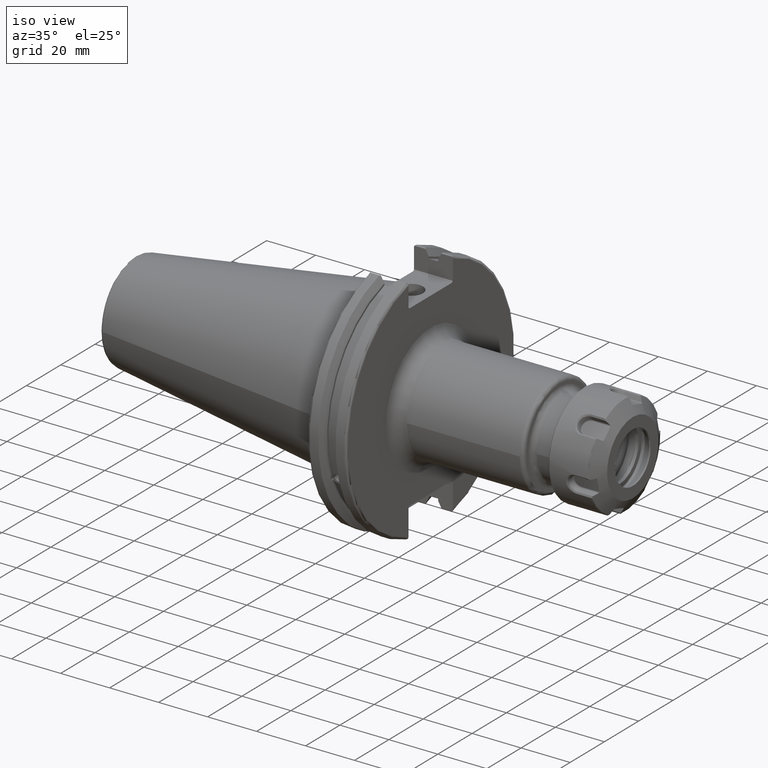
[diagram: clean part render]
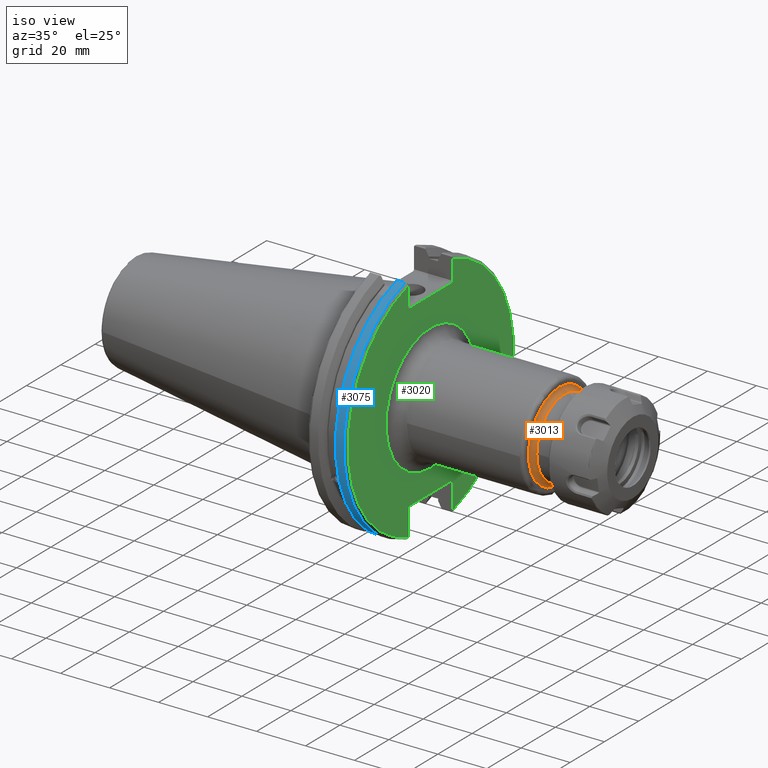
[diagram: same view with three faces highlighted in distinct colors, each labeled with its STEP entity id]
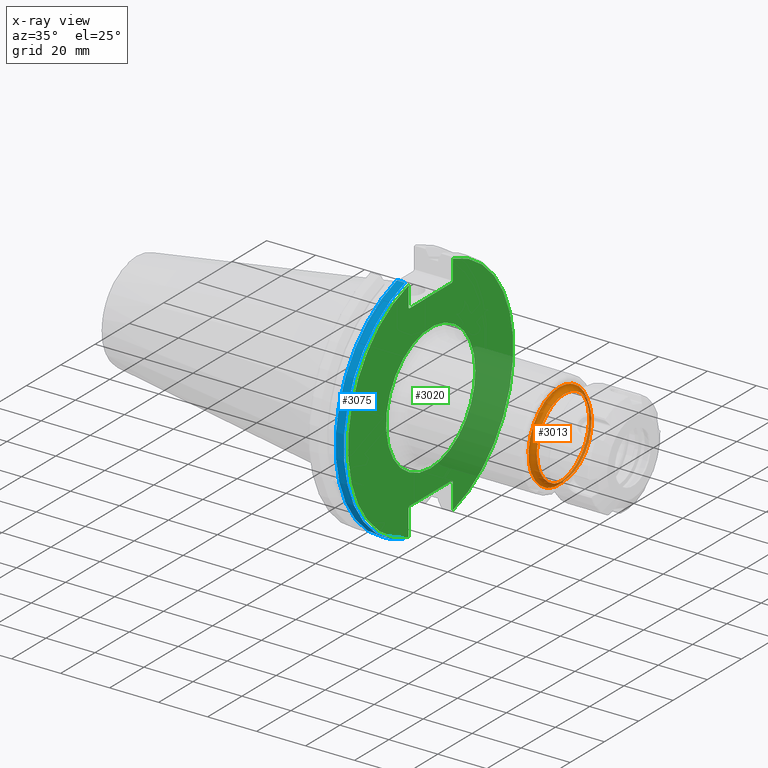
[diagram: x-ray of the same camera — body ghosted, the three highlighted faces saturated]
A machine part, iso view with three faces highlighted in distinct colors.
The next image is the same camera in x-ray (body ghosted, the three faces saturated) — at least one of them is partly hidden behind the body in this view.
Their STEP definitions:

[orange] entity #3013 — the highlighted toroidal blend (fillet) surface has major radius 18 mm and minor (blend) radius 2 mm.
#51=TOROIDAL_SURFACE('',#3258,18.,2.);
#293=FACE_OUTER_BOUND('',#466,.T.);
#466=EDGE_LOOP('',(#2040,#2041,#2042,#2043,#2044,#2045,#2046));
#1033=CIRCLE('',#3252,16.);
#1034=CIRCLE('',#3253,16.);
#1035=CIRCLE('',#3254,16.);
#1038=CIRCLE('',#3259,18.);
#1039=CIRCLE('',#3260,2.);
#1040=CIRCLE('',#3261,18.);
#1220=VERTEX_POINT('',#4626);
#1221=VERTEX_POINT('',#4628);
#1222=VERTEX_POINT('',#4630);
#1225=VERTEX_POINT('',#4639);
#1226=VERTEX_POINT('',#4640);
#1549=EDGE_CURVE('',#1221,#1220,#1033,.T.);
#1550=EDGE_CURVE('',#1222,#1221,#1034,.T.);
#1551=EDGE_CURVE('',#1220,#1222,#1035,.T.);
#1554=EDGE_CURVE('',#1225,#1226,#1038,.T.);
#1555=EDGE_CURVE('',#1226,#1222,#1039,.T.);
#1556=EDGE_CURVE('',#1226,#1225,#1040,.T.);
#2040=ORIENTED_EDGE('',*,*,#1554,.T.);
#2041=ORIENTED_EDGE('',*,*,#1555,.T.);
#2042=ORIENTED_EDGE('',*,*,#1550,.T.);
#2043=ORIENTED_EDGE('',*,*,#1549,.T.);
#2044=ORIENTED_EDGE('',*,*,#1551,.T.);
#2045=ORIENTED_EDGE('',*,*,#1555,.F.);
#2046=ORIENTED_EDGE('',*,*,#1556,.T.);
#3013=ADVANCED_FACE('',(#293),#51,.F.);
#3252=AXIS2_PLACEMENT_3D('',#4629,#3621,#3622);
#3253=AXIS2_PLACEMENT_3D('',#4631,#3623,#3624);
#3254=AXIS2_PLACEMENT_3D('',#4632,#3625,#3626);
#3258=AXIS2_PLACEMENT_3D('',#4638,#3633,#3634);
#3259=AXIS2_PLACEMENT_3D('',#4641,#3635,#3636);
#3260=AXIS2_PLACEMENT_3D('',#4642,#3637,#3638);
#3261=AXIS2_PLACEMENT_3D('',#4643,#3639,#3640);
#3621=DIRECTION('center_axis',(-1.,0.,0.));
#3622=DIRECTION('ref_axis',(0.,-1.,1.83697019872103E-16));
#3623=DIRECTION('center_axis',(-1.,0.,0.));
#3624=DIRECTION('ref_axis',(0.,-1.,1.83697019872103E-16));
#3625=DIRECTION('center_axis',(-1.,0.,0.));
#3626=DIRECTION('ref_axis',(0.,-1.,1.83697019872103E-16));
#3633=DIRECTION('center_axis',(1.,0.,0.));
#3634=DIRECTION('ref_axis',(0.,0.,-1.));
#3635=DIRECTION('center_axis',(1.,0.,0.));
#3636=DIRECTION('ref_axis',(0.,-1.,1.83697019872103E-16));
#3637=DIRECTION('center_axis',(0.,-1.,-1.22464679914735E-16));
#3638=DIRECTION('ref_axis',(0.,-1.22464679914735E-16,1.));
#3639=DIRECTION('center_axis',(1.,0.,0.));
#3640=DIRECTION('ref_axis',(0.,-1.,1.83697019872103E-16));
#4626=CARTESIAN_POINT('',(73.6,-16.,-1.95943487863576E-15));
#4628=CARTESIAN_POINT('',(73.6,16.,-4.89858719658941E-15));
#4629=CARTESIAN_POINT('Origin',(73.6,0.,0.));
#4630=CARTESIAN_POINT('',(73.6,-1.95943487863576E-15,16.));
#4631=CARTESIAN_POINT('Origin',(73.6,0.,0.));
#4632=CARTESIAN_POINT('Origin',(73.6,0.,0.));
#4638=CARTESIAN_POINT('Origin',(73.6,0.,0.));
#4639=CARTESIAN_POINT('',(71.6,18.,-1.10218211923262E-15));
#4640=CARTESIAN_POINT('',(71.6,-2.20436423846523E-15,18.));
#4641=CARTESIAN_POINT('Origin',(71.6,0.,0.));
#4642=CARTESIAN_POINT('Origin',(73.6,-2.20436423846523E-15,18.));
#4643=CARTESIAN_POINT('Origin',(71.6,0.,0.));

[blue] entity #3075 — the highlighted cylindrical surface (partial cylindrical patch) has radius 49.2125 mm, axis along (1, 0, 0).
#355=FACE_OUTER_BOUND('',#543,.T.);
#543=EDGE_LOOP('',(#2435,#2436,#2437,#2438));
#738=LINE('',#5437,#924);
#739=LINE('',#5439,#925);
#924=VECTOR('',#4017,10.);
#925=VECTOR('',#4020,10.);
#1074=CIRCLE('',#3313,49.2125);
#1112=CIRCLE('',#3378,49.2125);
#1281=VERTEX_POINT('',#4877);
#1282=VERTEX_POINT('',#4881);
#1356=VERTEX_POINT('',#5272);
#1357=VERTEX_POINT('',#5281);
#1622=EDGE_CURVE('',#1282,#1281,#1074,.T.);
#1721=EDGE_CURVE('',#1356,#1357,#1112,.T.);
#1771=EDGE_CURVE('',#1357,#1281,#738,.T.);
#1772=EDGE_CURVE('',#1282,#1356,#739,.T.);
#2435=ORIENTED_EDGE('',*,*,#1721,.F.);
#2436=ORIENTED_EDGE('',*,*,#1772,.F.);
#2437=ORIENTED_EDGE('',*,*,#1622,.T.);
#2438=ORIENTED_EDGE('',*,*,#1771,.F.);
#2983=CYLINDRICAL_SURFACE('',#3410,49.2125);
#3075=ADVANCED_FACE('',(#355),#2983,.T.);
#3313=AXIS2_PLACEMENT_3D('',#4882,#3765,#3766);
#3378=AXIS2_PLACEMENT_3D('',#5282,#3930,#3931);
#3410=AXIS2_PLACEMENT_3D('',#5438,#4018,#4019);
#3765=DIRECTION('center_axis',(1.,0.,0.));
#3766=DIRECTION('ref_axis',(0.,0.,-1.));
#3930=DIRECTION('center_axis',(1.,0.,0.));
#3931=DIRECTION('ref_axis',(0.,-1.,1.60812264967664E-16));
#4017=DIRECTION('',(-1.,0.,0.));
#4018=DIRECTION('center_axis',(1.,0.,0.));
#4019=DIRECTION('ref_axis',(0.,-1.,1.22464679914735E-16));
#4020=DIRECTION('',(1.,0.,0.));
#4877=CARTESIAN_POINT('',(14.6602090340487,-13.4317035994433,-47.3440544806494));
#4881=CARTESIAN_POINT('',(14.6602090340487,-13.4317035994433,47.3440544806494));
#4882=CARTESIAN_POINT('Origin',(14.6602090340487,0.,0.));
#5272=CARTESIAN_POINT('',(18.05,-13.4317035994433,47.3440544806494));
#5281=CARTESIAN_POINT('',(18.05,-13.4317035994433,-47.3440544806494));
#5282=CARTESIAN_POINT('Origin',(18.05,0.,0.));
#5437=CARTESIAN_POINT('',(16.8551045170244,-13.4317035994433,-47.3440544806494));
#5438=CARTESIAN_POINT('Origin',(16.8551045170244,0.,0.));
#5439=CARTESIAN_POINT('',(16.8551045170244,-13.4317035994433,47.3440544806494));

[green] entity #3020 — the highlighted planar face has unit normal (1, 0, 0).
#76=PLANE('',#3286);
#174=FACE_BOUND('',#475,.T.);
#300=FACE_OUTER_BOUND('',#474,.T.);
#474=EDGE_LOOP('',(#2087,#2088,#2089,#2090,#2091,#2092,#2093,#2094,#2095,
#2096,#2097,#2098));
#475=EDGE_LOOP('',(#2099,#2100));
#660=LINE('',#4690,#846);
#661=LINE('',#4692,#847);
#662=LINE('',#4694,#848);
#663=LINE('',#4696,#849);
#664=LINE('',#4698,#850);
#665=LINE('',#4702,#851);
#666=LINE('',#4704,#852);
#667=LINE('',#4706,#853);
#668=LINE('',#4708,#854);
#669=LINE('',#4709,#855);
#846=VECTOR('',#3695,10.);
#847=VECTOR('',#3696,10.);
#848=VECTOR('',#3697,10.);
#849=VECTOR('',#3698,10.);
#850=VECTOR('',#3699,10.);
#851=VECTOR('',#3702,10.);
#852=VECTOR('',#3703,10.);
#853=VECTOR('',#3704,10.);
#854=VECTOR('',#3705,10.);
#855=VECTOR('',#3706,10.);
#1057=CIRCLE('',#3284,26.);
#1058=CIRCLE('',#3285,26.);
#1059=CIRCLE('',#3287,48.2125);
#1060=CIRCLE('',#3288,48.2125);
#1240=VERTEX_POINT('',#4680);
#1241=VERTEX_POINT('',#4682);
#1242=VERTEX_POINT('',#4686);
#1243=VERTEX_POINT('',#4687);
#1244=VERTEX_POINT('',#4689);
#1245=VERTEX_POINT('',#4691);
#1246=VERTEX_POINT('',#4693);
#1247=VERTEX_POINT('',#4695);
#1248=VERTEX_POINT('',#4697);
#1249=VERTEX_POINT('',#4699);
#1250=VERTEX_POINT('',#4701);
#1251=VERTEX_POINT('',#4703);
#1252=VERTEX_POINT('',#4705);
#1253=VERTEX_POINT('',#4707);
#1575=EDGE_CURVE('',#1240,#1241,#1057,.T.);
#1576=EDGE_CURVE('',#1241,#1240,#1058,.T.);
#1577=EDGE_CURVE('',#1242,#1243,#1059,.T.);
#1578=EDGE_CURVE('',#1242,#1244,#660,.T.);
#1579=EDGE_CURVE('',#1245,#1244,#661,.T.);
#1580=EDGE_CURVE('',#1245,#1246,#662,.T.);
#1581=EDGE_CURVE('',#1247,#1246,#663,.T.);
#1582=EDGE_CURVE('',#1247,#1248,#664,.T.);
#1583=EDGE_CURVE('',#1249,#1248,#1060,.T.);
#1584=EDGE_CURVE('',#1249,#1250,#665,.T.);
#1585=EDGE_CURVE('',#1251,#1250,#666,.T.);
#1586=EDGE_CURVE('',#1251,#1252,#667,.T.);
#1587=EDGE_CURVE('',#1253,#1252,#668,.T.);
#1588=EDGE_CURVE('',#1253,#1243,#669,.T.);
#2087=ORIENTED_EDGE('',*,*,#1577,.F.);
#2088=ORIENTED_EDGE('',*,*,#1578,.T.);
#2089=ORIENTED_EDGE('',*,*,#1579,.F.);
#2090=ORIENTED_EDGE('',*,*,#1580,.T.);
#2091=ORIENTED_EDGE('',*,*,#1581,.F.);
#2092=ORIENTED_EDGE('',*,*,#1582,.T.);
#2093=ORIENTED_EDGE('',*,*,#1583,.F.);
#2094=ORIENTED_EDGE('',*,*,#1584,.T.);
#2095=ORIENTED_EDGE('',*,*,#1585,.F.);
#2096=ORIENTED_EDGE('',*,*,#1586,.T.);
#2097=ORIENTED_EDGE('',*,*,#1587,.F.);
#2098=ORIENTED_EDGE('',*,*,#1588,.T.);
#2099=ORIENTED_EDGE('',*,*,#1576,.F.);
#2100=ORIENTED_EDGE('',*,*,#1575,.F.);
#3020=ADVANCED_FACE('',(#300,#174),#76,.T.);
#3284=AXIS2_PLACEMENT_3D('',#4683,#3687,#3688);
#3285=AXIS2_PLACEMENT_3D('',#4684,#3689,#3690);
#3286=AXIS2_PLACEMENT_3D('',#4685,#3691,#3692);
#3287=AXIS2_PLACEMENT_3D('',#4688,#3693,#3694);
#3288=AXIS2_PLACEMENT_3D('',#4700,#3700,#3701);
#3687=DIRECTION('center_axis',(1.,0.,0.));
#3688=DIRECTION('ref_axis',(0.,-1.,-1.22464679914735E-16));
#3689=DIRECTION('center_axis',(1.,0.,0.));
#3690=DIRECTION('ref_axis',(0.,-1.,-1.22464679914735E-16));
#3691=DIRECTION('center_axis',(1.,0.,0.));
#3692=DIRECTION('ref_axis',(0.,0.,-1.));
#3693=DIRECTION('center_axis',(-1.,0.,0.));
#3694=DIRECTION('ref_axis',(0.,1.,-6.12323399573677E-17));
#3695=DIRECTION('',(0.,0.,-1.));
#3696=DIRECTION('',(0.,0.707106781186549,0.707106781186546));
#3697=DIRECTION('',(0.,-1.,0.));
#3698=DIRECTION('',(0.,0.707106781186549,-0.707106781186546));
#3699=DIRECTION('',(0.,0.,1.));
#3700=DIRECTION('center_axis',(-1.,0.,0.));
#3701=DIRECTION('ref_axis',(0.,-1.,1.60812264967664E-16));
#3702=DIRECTION('',(0.,0.,1.));
#3703=DIRECTION('',(0.,-0.707106781186549,-0.707106781186546));
#3704=DIRECTION('',(0.,1.,0.));
#3705=DIRECTION('',(0.,-0.707106781186549,0.707106781186546));
#3706=DIRECTION('',(0.,0.,-1.));
#4680=CARTESIAN_POINT('',(19.05,-3.18408167778312E-15,-26.));
#4682=CARTESIAN_POINT('',(19.05,26.,6.36816335556624E-15));
#4683=CARTESIAN_POINT('Origin',(19.05,0.,0.));
#4684=CARTESIAN_POINT('Origin',(19.05,0.,0.));
#4685=CARTESIAN_POINT('Origin',(19.05,0.,0.));
#4686=CARTESIAN_POINT('',(19.05,12.95,46.4407434937254));
#4687=CARTESIAN_POINT('',(19.05,12.95,-46.4407434937254));
#4688=CARTESIAN_POINT('Origin',(19.05,0.,0.));
#4689=CARTESIAN_POINT('',(19.05,12.95,38.219));
#4690=CARTESIAN_POINT('',(19.05,12.95,18.8595));
#4691=CARTESIAN_POINT('',(19.05,12.45,37.719));
#4692=CARTESIAN_POINT('',(19.05,0.0327499999999836,25.30175));
#4693=CARTESIAN_POINT('',(19.05,-12.45,37.719));
#4694=CARTESIAN_POINT('',(19.05,0.,37.719));
#4695=CARTESIAN_POINT('',(19.05,-12.95,38.219));
#4696=CARTESIAN_POINT('',(19.05,-0.0327499999999817,25.30175));
#4697=CARTESIAN_POINT('',(19.05,-12.95,46.4407434937254));
#4698=CARTESIAN_POINT('',(19.05,-12.95,18.8595));
#4699=CARTESIAN_POINT('',(19.05,-12.95,-46.4407434937254));
#4700=CARTESIAN_POINT('Origin',(19.05,0.,0.));
#4701=CARTESIAN_POINT('',(19.05,-12.95,-35.806));
#4702=CARTESIAN_POINT('',(19.05,-12.95,-17.653));
#4703=CARTESIAN_POINT('',(19.05,-12.45,-35.306));
#4704=CARTESIAN_POINT('',(19.05,-0.635999999999989,-23.492));
#4705=CARTESIAN_POINT('',(19.05,12.45,-35.306));
#4706=CARTESIAN_POINT('',(19.05,-3.33066907387547E-15,-35.306));
#4707=CARTESIAN_POINT('',(19.05,12.95,-35.806));
#4708=CARTESIAN_POINT('',(19.05,0.635999999999982,-23.492));
#4709=CARTESIAN_POINT('',(19.05,12.95,-17.653));